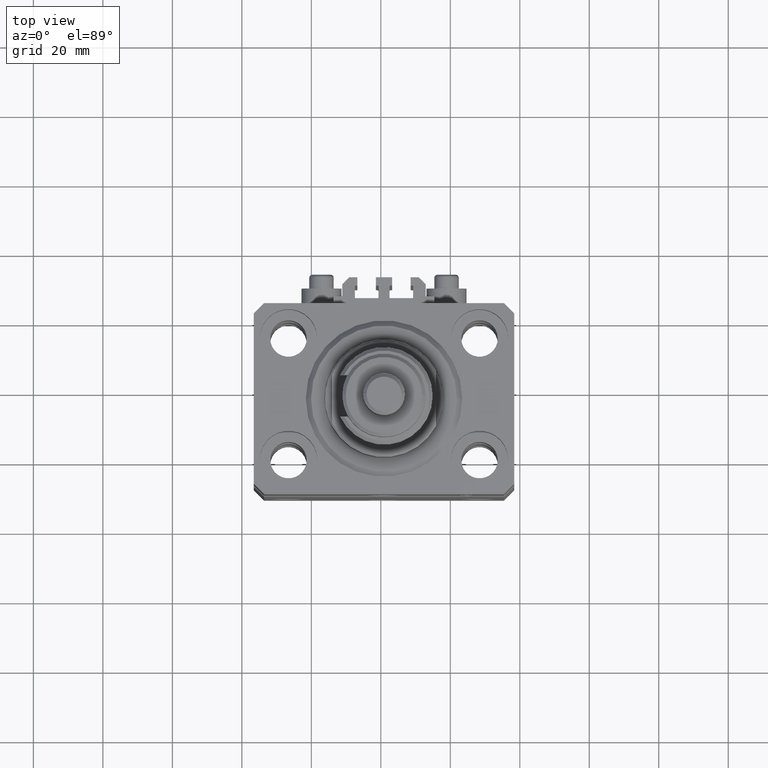
[diagram: clean part render]
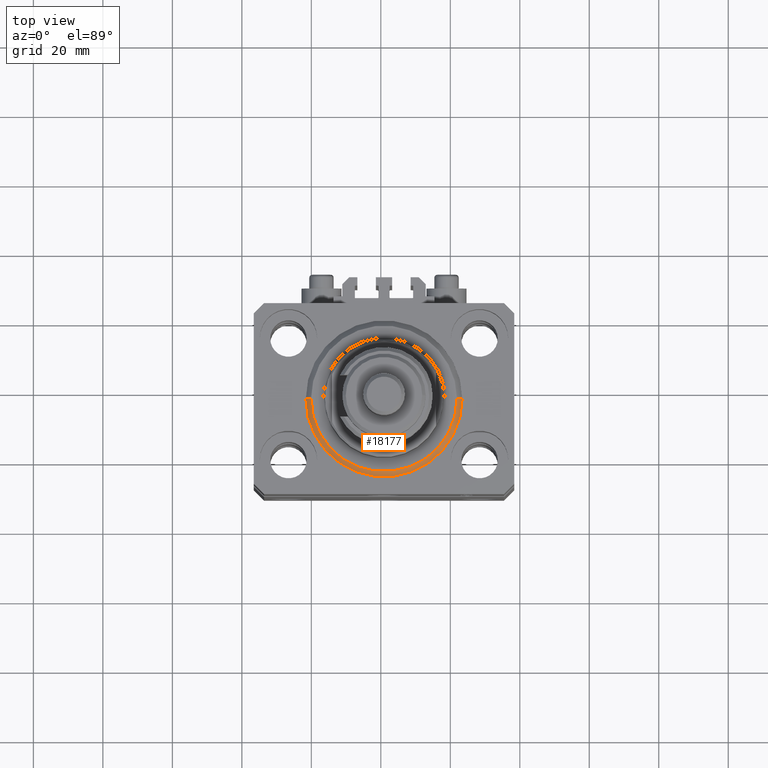
[diagram: same view with one face highlighted and labeled with its STEP entity id]
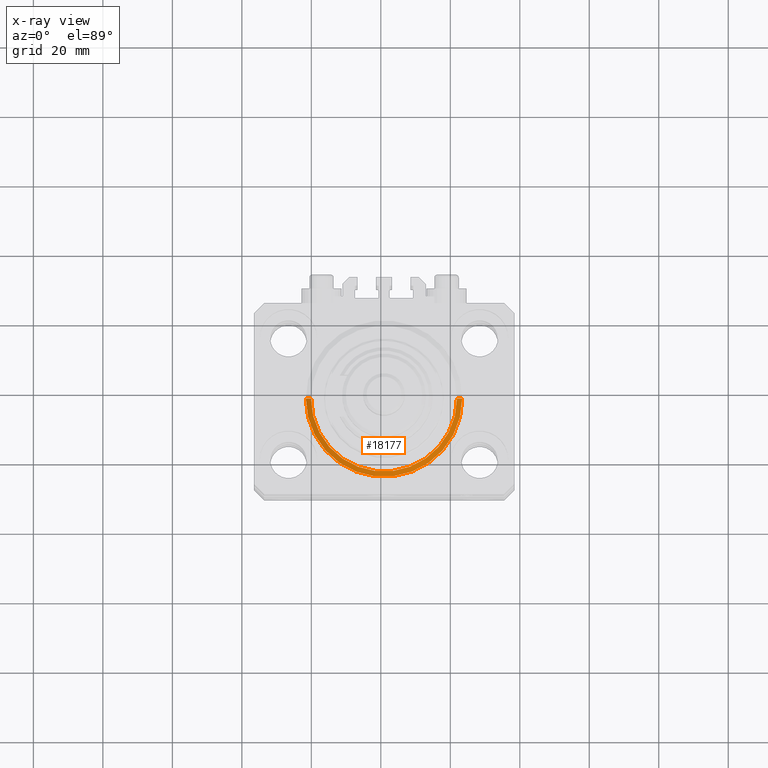
[diagram: x-ray of the same camera — body ghosted, the highlighted face saturated]
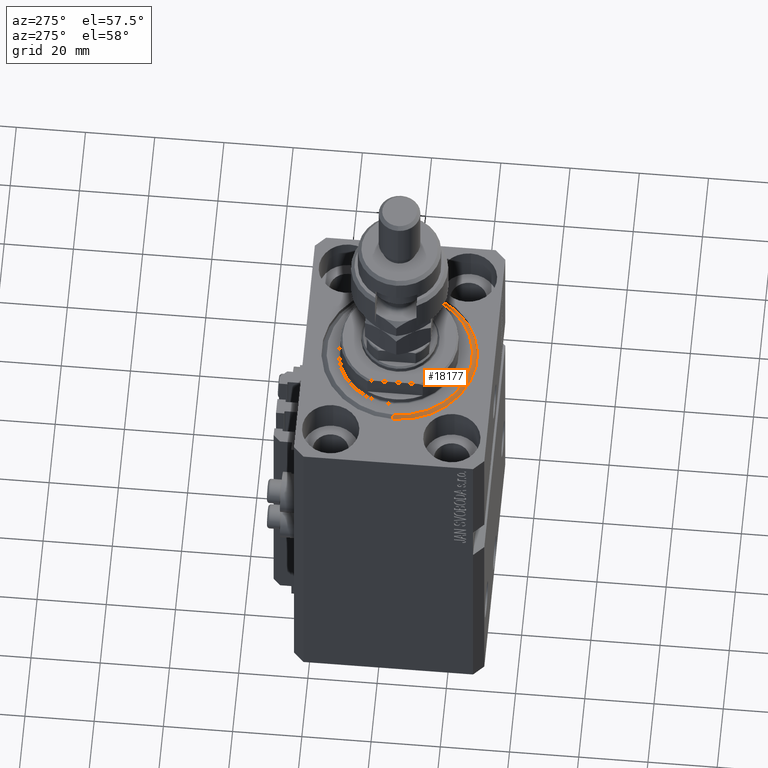
[diagram: same view with one face highlighted and labeled with its STEP entity id]
A machine part, top view. The second image highlights one B-rep face of the part: STEP entity #18177.
The next image is the same camera in x-ray: the body ghosted, the highlighted face saturated — about 0% of this face is hidden behind the body in this view.
A second angle (auxiliary view) of the same face is appended — the face is thin or edge-on in the first view.
In plain terms, the highlighted conical surface has half-angle 45 deg.
Its self-contained STEP definition (entity closure, byte-faithful):
#439 = AXIS2_PLACEMENT_3D ( 'NONE', #24403, #27468, #24160 ) ;
#1777 = VERTEX_POINT ( 'NONE', #12517 ) ;
#2155 = VERTEX_POINT ( 'NONE', #17032 ) ;
#3151 = DIRECTION ( 'NONE',  ( 0.7071067811865500152, 0.000000000000000000, 0.7071067811865451302 ) ) ;
#5497 = VERTEX_POINT ( 'NONE', #26938 ) ;
#5584 = ORIENTED_EDGE ( 'NONE', *, *, #38813, .F. ) ;
#6131 = CIRCLE ( 'NONE', #439, 20.99999999999998934 ) ;
#8589 = CARTESIAN_POINT ( 'NONE',  ( 0.000000000000000000, 0.000000000000000000, 1.500000000000001332 ) ) ;
#11290 = CARTESIAN_POINT ( 'NONE',  ( 22.50000000000000355, 0.000000000000000000, 1.500000000000001332 ) ) ;
#12132 = AXIS2_PLACEMENT_3D ( 'NONE', #16550, #32020, #12738 ) ;
#12517 = CARTESIAN_POINT ( 'NONE',  ( 22.50000000000000355, 2.755455298081545172E-15, 1.500000000000001332 ) ) ;
#12738 = DIRECTION ( 'NONE',  ( 1.000000000000000000, 0.000000000000000000, 0.000000000000000000 ) ) ;
#16550 = CARTESIAN_POINT ( 'NONE',  ( 0.000000000000000000, 0.000000000000000000, 1.500000000000001332 ) ) ;
#17032 = CARTESIAN_POINT ( 'NONE',  ( -20.99999999999998934, 2.663606788145492628E-15, 0.000000000000000000 ) ) ;
#17901 = DIRECTION ( 'NONE',  ( -0.7071067811865500152, 8.659560562354963673E-17, 0.7071067811865451302 ) ) ;
#18177 = ADVANCED_FACE ( 'NONE', ( #46519 ), #46170, .T. ) ;
#19055 = VERTEX_POINT ( 'NONE', #46834 ) ;
#22330 = ORIENTED_EDGE ( 'NONE', *, *, #42389, .T. ) ;
#24160 = DIRECTION ( 'NONE',  ( 1.000000000000000000, 0.000000000000000000, 0.000000000000000000 ) ) ;
#24403 = CARTESIAN_POINT ( 'NONE',  ( 0.000000000000000000, 0.000000000000000000, 0.000000000000000000 ) ) ;
#24585 = VECTOR ( 'NONE', #3151, 1000.000000000000114 ) ;
#26294 = EDGE_LOOP ( 'NONE', ( #5584, #29648, #22330, #27435 ) ) ;
#26524 = LINE ( 'NONE', #11290, #24585 ) ;
#26938 = CARTESIAN_POINT ( 'NONE',  ( 20.99999999999998934, 0.000000000000000000, 0.000000000000000000 ) ) ;
#27435 = ORIENTED_EDGE ( 'NONE', *, *, #44750, .F. ) ;
#27468 = DIRECTION ( 'NONE',  ( -0.000000000000000000, -0.000000000000000000, -1.000000000000000000 ) ) ;
#29046 = LINE ( 'NONE', #33621, #30194 ) ;
#29648 = ORIENTED_EDGE ( 'NONE', *, *, #47282, .F. ) ;
#30194 = VECTOR ( 'NONE', #17901, 1000.000000000000114 ) ;
#32020 = DIRECTION ( 'NONE',  ( -0.000000000000000000, -0.000000000000000000, 1.000000000000000000 ) ) ;
#33621 = CARTESIAN_POINT ( 'NONE',  ( -22.50000000000000355, 2.755455298081545172E-15, 1.500000000000001332 ) ) ;
#36064 = AXIS2_PLACEMENT_3D ( 'NONE', #8589, #50007, #39079 ) ;
#38813 = EDGE_CURVE ( 'NONE', #2155, #19055, #29046, .T. ) ;
#39079 = DIRECTION ( 'NONE',  ( 1.000000000000000000, 0.000000000000000000, 0.000000000000000000 ) ) ;
#42389 = EDGE_CURVE ( 'NONE', #5497, #1777, #26524, .T. ) ;
#44750 = EDGE_CURVE ( 'NONE', #19055, #1777, #49849, .T. ) ;
#46170 = CONICAL_SURFACE ( 'NONE', #12132, 22.50000000000000355, 0.7853981633974517207 ) ;
#46519 = FACE_OUTER_BOUND ( 'NONE', #26294, .T. ) ;
#46834 = CARTESIAN_POINT ( 'NONE',  ( -22.50000000000000355, 0.000000000000000000, 1.500000000000001332 ) ) ;
#47282 = EDGE_CURVE ( 'NONE', #5497, #2155, #6131, .T. ) ;
#49849 = CIRCLE ( 'NONE', #36064, 22.50000000000000355 ) ;
#50007 = DIRECTION ( 'NONE',  ( -0.000000000000000000, -0.000000000000000000, 1.000000000000000000 ) ) ;